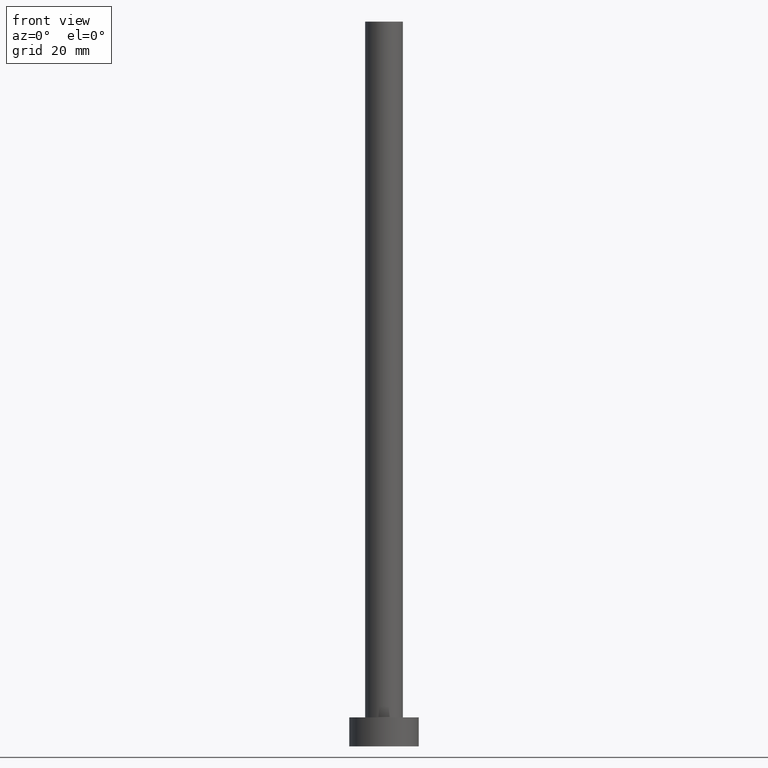
[diagram: clean part render]
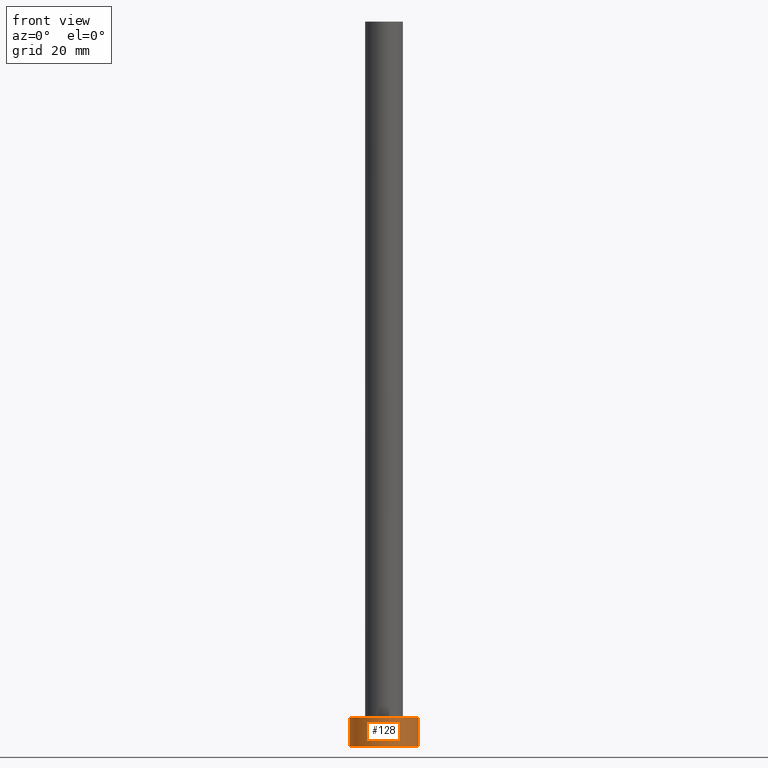
[diagram: same view with one face highlighted and labeled with its STEP entity id]
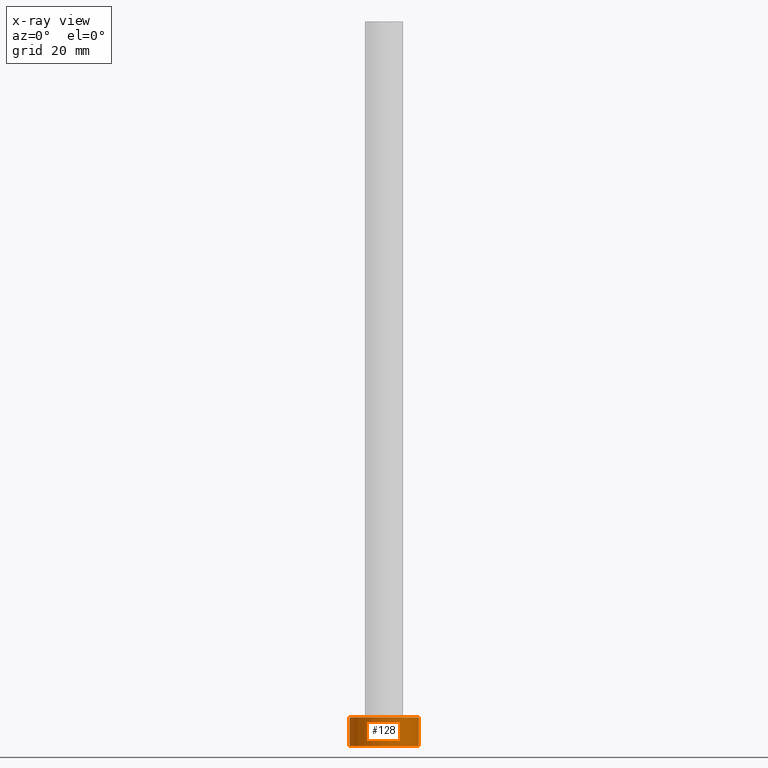
[diagram: x-ray of the same camera — body ghosted, the highlighted face saturated]
A machine part, front view. The second image highlights one B-rep face of the part: STEP entity #128.
The next image is the same camera in x-ray: the body ghosted, the highlighted face saturated — about 0% of this face is hidden behind the body in this view.
In plain terms, the highlighted cylindrical surface (edge-blend (fillet) strip) has radius 6 mm, axis along (-0, -0, -1).
Its self-contained STEP definition (entity closure, byte-faithful):
#9 = CYLINDRICAL_SURFACE ( 'NONE', #200, 6.000000000000000888 ) ;
#25 = ORIENTED_EDGE ( 'NONE', *, *, #59, .F. ) ;
#28 = CARTESIAN_POINT ( 'NONE',  ( 6.000000000000000888, 7.347880794884120722E-16, 5.000000000000000000 ) ) ;
#33 = DIRECTION ( 'NONE',  ( 1.000000000000000000, 0.000000000000000000, 0.000000000000000000 ) ) ;
#45 = CARTESIAN_POINT ( 'NONE',  ( 6.000000000000000888, 7.347880794884120722E-16, 5.000000000000000000 ) ) ;
#46 = ORIENTED_EDGE ( 'NONE', *, *, #54, .T. ) ;
#54 = EDGE_CURVE ( 'NONE', #117, #129, #71, .T. ) ;
#59 = EDGE_CURVE ( 'NONE', #102, #199, #241, .T. ) ;
#67 = ORIENTED_EDGE ( 'NONE', *, *, #168, .T. ) ;
#71 = LINE ( 'NONE', #107, #182 ) ;
#73 = FACE_OUTER_BOUND ( 'NONE', #216, .T. ) ;
#75 = CARTESIAN_POINT ( 'NONE',  ( 0.000000000000000000, 0.000000000000000000, 5.000000000000000000 ) ) ;
#93 = AXIS2_PLACEMENT_3D ( 'NONE', #94, #159, #195 ) ;
#94 = CARTESIAN_POINT ( 'NONE',  ( 0.000000000000000000, 0.000000000000000000, 5.000000000000000000 ) ) ;
#102 = VERTEX_POINT ( 'NONE', #28 ) ;
#107 = CARTESIAN_POINT ( 'NONE',  ( -6.000000000000000888, 0.000000000000000000, 5.000000000000000000 ) ) ;
#110 = DIRECTION ( 'NONE',  ( -1.000000000000000000, 0.000000000000000000, 0.000000000000000000 ) ) ;
#115 = DIRECTION ( 'NONE',  ( -0.000000000000000000, -0.000000000000000000, -1.000000000000000000 ) ) ;
#117 = VERTEX_POINT ( 'NONE', #151 ) ;
#128 = ADVANCED_FACE ( 'NONE', ( #73 ), #9, .T. ) ;
#129 = VERTEX_POINT ( 'NONE', #191 ) ;
#133 = EDGE_CURVE ( 'NONE', #117, #102, #187, .T. ) ;
#151 = CARTESIAN_POINT ( 'NONE',  ( -6.000000000000000888, 0.000000000000000000, 5.000000000000000000 ) ) ;
#154 = AXIS2_PLACEMENT_3D ( 'NONE', #176, #248, #33 ) ;
#159 = DIRECTION ( 'NONE',  ( 0.000000000000000000, 0.000000000000000000, 1.000000000000000000 ) ) ;
#164 = VECTOR ( 'NONE', #185, 1000.000000000000000 ) ;
#168 = EDGE_CURVE ( 'NONE', #129, #199, #236, .T. ) ;
#176 = CARTESIAN_POINT ( 'NONE',  ( 0.000000000000000000, 0.000000000000000000, 0.000000000000000000 ) ) ;
#182 = VECTOR ( 'NONE', #204, 1000.000000000000000 ) ;
#185 = DIRECTION ( 'NONE',  ( -0.000000000000000000, -0.000000000000000000, -1.000000000000000000 ) ) ;
#187 = CIRCLE ( 'NONE', #93, 6.000000000000000888 ) ;
#191 = CARTESIAN_POINT ( 'NONE',  ( -6.000000000000000888, 0.000000000000000000, 0.000000000000000000 ) ) ;
#195 = DIRECTION ( 'NONE',  ( 1.000000000000000000, 0.000000000000000000, 0.000000000000000000 ) ) ;
#199 = VERTEX_POINT ( 'NONE', #228 ) ;
#200 = AXIS2_PLACEMENT_3D ( 'NONE', #75, #115, #110 ) ;
#204 = DIRECTION ( 'NONE',  ( -0.000000000000000000, -0.000000000000000000, -1.000000000000000000 ) ) ;
#216 = EDGE_LOOP ( 'NONE', ( #25, #239, #46, #67 ) ) ;
#228 = CARTESIAN_POINT ( 'NONE',  ( 6.000000000000000888, 7.347880794884120722E-16, 0.000000000000000000 ) ) ;
#236 = CIRCLE ( 'NONE', #154, 6.000000000000000888 ) ;
#239 = ORIENTED_EDGE ( 'NONE', *, *, #133, .F. ) ;
#241 = LINE ( 'NONE', #45, #164 ) ;
#248 = DIRECTION ( 'NONE',  ( 0.000000000000000000, 0.000000000000000000, 1.000000000000000000 ) ) ;